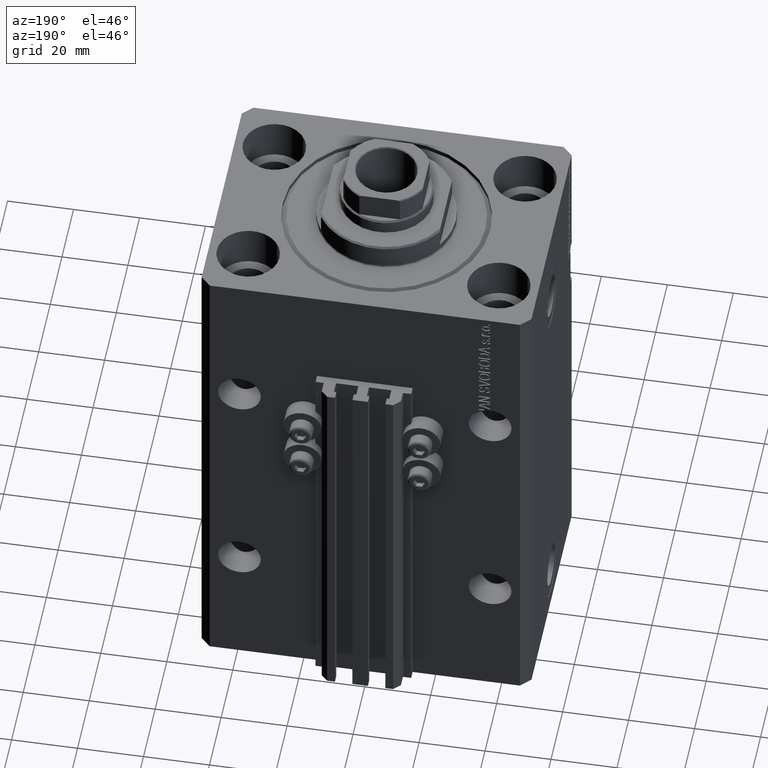
[diagram: clean part render]
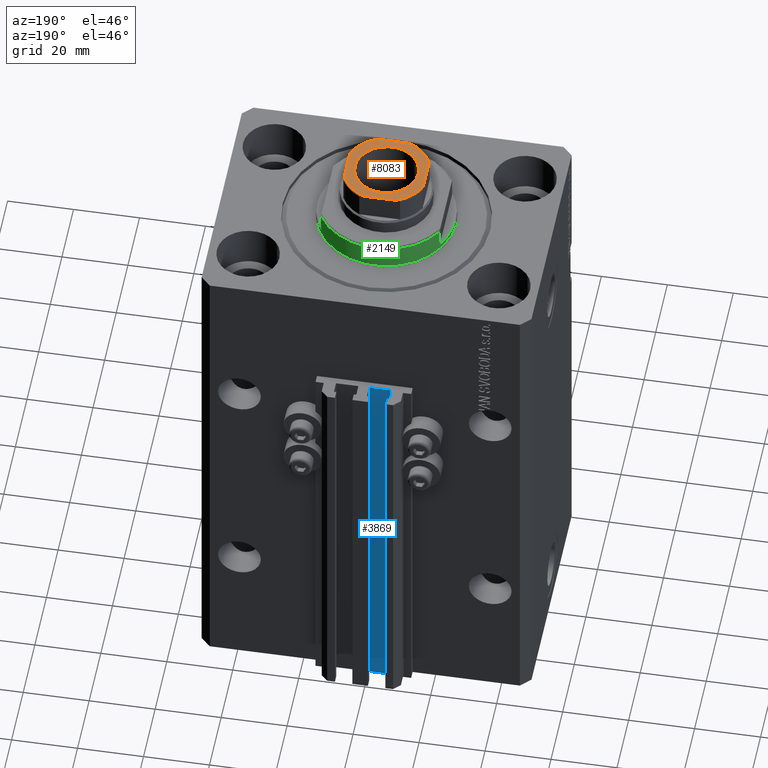
[diagram: same view with three faces highlighted in distinct colors, each labeled with its STEP entity id]
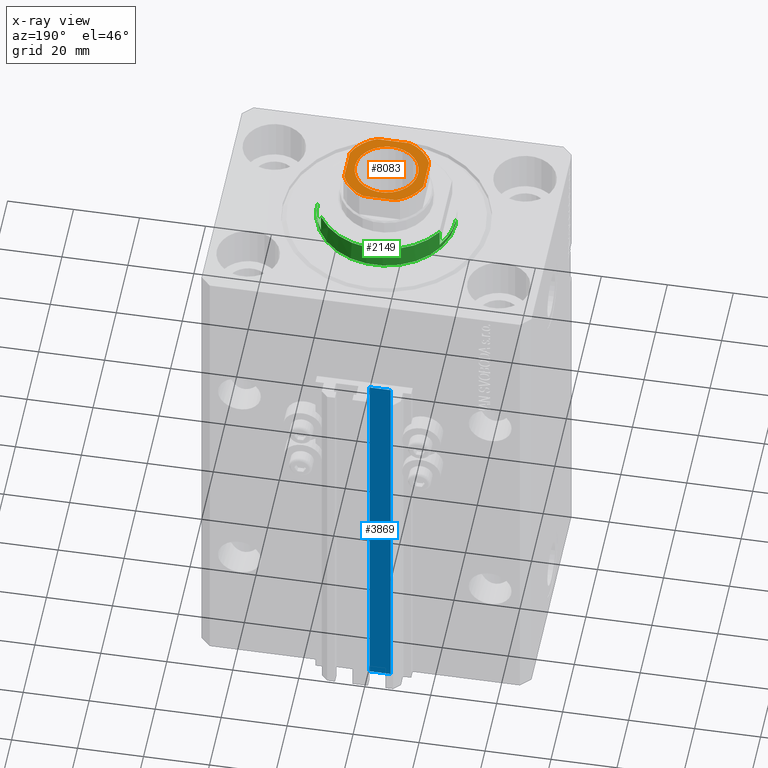
[diagram: x-ray of the same camera — body ghosted, the three highlighted faces saturated]
A machine part, auxiliary view with three faces highlighted in distinct colors.
The next image is the same camera in x-ray (body ghosted, the three faces saturated) — at least one of them is partly hidden behind the body in this view.
Their STEP definitions:

[orange] entity #8083 — the highlighted planar face has unit normal (0, 0, 1).
#501 = DIRECTION ( 'NONE',  ( -1.445602896647339163E-16, 1.000000000000000000, -0.000000000000000000 ) ) ;
#2084 = ORIENTED_EDGE ( 'NONE', *, *, #6700, .T. ) ;
#2509 = DIRECTION ( 'NONE',  ( -0.000000000000000000, 0.000000000000000000, 1.000000000000000000 ) ) ;
#3273 = AXIS2_PLACEMENT_3D ( 'NONE', #17243, #33081, #36257 ) ;
#3310 = CARTESIAN_POINT ( 'NONE',  ( 0.000000000000000000, 0.000000000000000000, 163.1000000000000227 ) ) ;
#4049 = CARTESIAN_POINT ( 'NONE',  ( 5.000000000000002665, 12.00000000000000000, 163.1000000000000227 ) ) ;
#4467 = VERTEX_POINT ( 'NONE', #23609 ) ;
#4677 = DIRECTION ( 'NONE',  ( -0.000000000000000000, 0.000000000000000000, 1.000000000000000000 ) ) ;
#5738 = VERTEX_POINT ( 'NONE', #42980 ) ;
#6082 = VECTOR ( 'NONE', #41939, 1000.000000000000000 ) ;
#6700 = EDGE_CURVE ( 'NONE', #19696, #6999, #23826, .T. ) ;
#6999 = VERTEX_POINT ( 'NONE', #35691 ) ;
#7213 = VERTEX_POINT ( 'NONE', #26890 ) ;
#7603 = DIRECTION ( 'NONE',  ( -1.000000000000000000, -7.228014483236695816E-17, -0.000000000000000000 ) ) ;
#7735 = DIRECTION ( 'NONE',  ( 1.000000000000000000, 0.000000000000000000, 0.000000000000000000 ) ) ;
#8056 = LINE ( 'NONE', #15365, #6082 ) ;
#8083 = ADVANCED_FACE ( 'NONE', ( #39298, #24196 ), #31769, .T. ) ;
#9867 = EDGE_CURVE ( 'NONE', #44081, #40780, #41256, .T. ) ;
#10266 = EDGE_LOOP ( 'NONE', ( #2084, #25209, #15390, #35136, #12249, #19325, #26191, #44933 ) ) ;
#10425 = CARTESIAN_POINT ( 'NONE',  ( -11.99999999999999822, 5.000000000000000888, 163.1000000000000227 ) ) ;
#11263 = CARTESIAN_POINT ( 'NONE',  ( -11.99999999999999822, 11.99999999999999822, 163.1000000000000227 ) ) ;
#11318 = DIRECTION ( 'NONE',  ( 1.000000000000000000, 0.000000000000000000, 0.000000000000000000 ) ) ;
#11445 = CARTESIAN_POINT ( 'NONE',  ( 12.00000000000000000, 12.00000000000000000, 163.1000000000000227 ) ) ;
#12249 = ORIENTED_EDGE ( 'NONE', *, *, #16555, .T. ) ;
#12629 = CARTESIAN_POINT ( 'NONE',  ( 12.00000000000000178, -4.999999999999990230, 163.1000000000000227 ) ) ;
#13100 = DIRECTION ( 'NONE',  ( 7.228014483236695816E-17, -1.000000000000000000, 0.000000000000000000 ) ) ;
#13368 = EDGE_CURVE ( 'NONE', #4467, #5738, #18798, .T. ) ;
#13576 = ORIENTED_EDGE ( 'NONE', *, *, #39868, .T. ) ;
#14180 = DIRECTION ( 'NONE',  ( 1.000000000000000000, 0.000000000000000000, 0.000000000000000000 ) ) ;
#14876 = AXIS2_PLACEMENT_3D ( 'NONE', #16595, #4677, #19531 ) ;
#15365 = CARTESIAN_POINT ( 'NONE',  ( -11.99999999999999645, -12.00000000000000178, 163.1000000000000227 ) ) ;
#15390 = ORIENTED_EDGE ( 'NONE', *, *, #46297, .T. ) ;
#15464 = DIRECTION ( 'NONE',  ( -0.000000000000000000, 0.000000000000000000, 1.000000000000000000 ) ) ;
#15605 = EDGE_CURVE ( 'NONE', #42229, #32956, #18765, .T. ) ;
#16555 = EDGE_CURVE ( 'NONE', #32956, #44081, #22646, .T. ) ;
#16595 = CARTESIAN_POINT ( 'NONE',  ( 0.000000000000000000, 0.000000000000000000, 163.1000000000000227 ) ) ;
#16691 = AXIS2_PLACEMENT_3D ( 'NONE', #3310, #15464, #48139 ) ;
#17243 = CARTESIAN_POINT ( 'NONE',  ( 0.000000000000000000, 0.000000000000000000, 163.1000000000000227 ) ) ;
#17582 = CARTESIAN_POINT ( 'NONE',  ( 0.000000000000000000, 0.000000000000000000, 163.1000000000000227 ) ) ;
#18765 = CIRCLE ( 'NONE', #14876, 13.00000000000000000 ) ;
#18798 = CIRCLE ( 'NONE', #3273, 9.550000000000030909 ) ;
#18954 = VERTEX_POINT ( 'NONE', #21031 ) ;
#19325 = ORIENTED_EDGE ( 'NONE', *, *, #9867, .T. ) ;
#19531 = DIRECTION ( 'NONE',  ( 1.000000000000000000, 0.000000000000000000, 0.000000000000000000 ) ) ;
#19678 = DIRECTION ( 'NONE',  ( 0.000000000000000000, -0.000000000000000000, -1.000000000000000000 ) ) ;
#19696 = VERTEX_POINT ( 'NONE', #10425 ) ;
#20141 = DIRECTION ( 'NONE',  ( -0.000000000000000000, 0.000000000000000000, 1.000000000000000000 ) ) ;
#20608 = CIRCLE ( 'NONE', #42417, 9.550000000000030909 ) ;
#21031 = CARTESIAN_POINT ( 'NONE',  ( -5.000000000000001776, 11.99999999999999822, 163.1000000000000227 ) ) ;
#21348 = CIRCLE ( 'NONE', #16691, 13.00000000000000000 ) ;
#21469 = EDGE_CURVE ( 'NONE', #40780, #18954, #29805, .T. ) ;
#22646 = LINE ( 'NONE', #11445, #42924 ) ;
#23609 = CARTESIAN_POINT ( 'NONE',  ( -9.550000000000030909, 1.169537693185726108E-15, 163.1000000000000227 ) ) ;
#23826 = LINE ( 'NONE', #38700, #24011 ) ;
#24011 = VECTOR ( 'NONE', #13100, 1000.000000000000000 ) ;
#24143 = EDGE_CURVE ( 'NONE', #6999, #7213, #24651, .T. ) ;
#24196 = FACE_OUTER_BOUND ( 'NONE', #10266, .T. ) ;
#24651 = CIRCLE ( 'NONE', #28857, 13.00000000000000000 ) ;
#25209 = ORIENTED_EDGE ( 'NONE', *, *, #24143, .T. ) ;
#26191 = ORIENTED_EDGE ( 'NONE', *, *, #21469, .T. ) ;
#26274 = ORIENTED_EDGE ( 'NONE', *, *, #13368, .T. ) ;
#26890 = CARTESIAN_POINT ( 'NONE',  ( -4.999999999999992895, -12.00000000000000178, 163.1000000000000227 ) ) ;
#27471 = CARTESIAN_POINT ( 'NONE',  ( 0.000000000000000000, 0.000000000000000000, 163.1000000000000227 ) ) ;
#28857 = AXIS2_PLACEMENT_3D ( 'NONE', #33496, #32786, #11318 ) ;
#29805 = LINE ( 'NONE', #11263, #47752 ) ;
#31769 = PLANE ( 'NONE',  #41194 ) ;
#32492 = EDGE_LOOP ( 'NONE', ( #13576, #26274 ) ) ;
#32786 = DIRECTION ( 'NONE',  ( -0.000000000000000000, 0.000000000000000000, 1.000000000000000000 ) ) ;
#32956 = VERTEX_POINT ( 'NONE', #12629 ) ;
#33081 = DIRECTION ( 'NONE',  ( 0.000000000000000000, -0.000000000000000000, -1.000000000000000000 ) ) ;
#33496 = CARTESIAN_POINT ( 'NONE',  ( 0.000000000000000000, 0.000000000000000000, 163.1000000000000227 ) ) ;
#35136 = ORIENTED_EDGE ( 'NONE', *, *, #15605, .T. ) ;
#35691 = CARTESIAN_POINT ( 'NONE',  ( -11.99999999999999822, -5.000000000000001776, 163.1000000000000227 ) ) ;
#36257 = DIRECTION ( 'NONE',  ( 1.000000000000000000, 0.000000000000000000, 0.000000000000000000 ) ) ;
#38126 = AXIS2_PLACEMENT_3D ( 'NONE', #27471, #20141, #42333 ) ;
#38700 = CARTESIAN_POINT ( 'NONE',  ( -11.99999999999999822, 11.99999999999999822, 163.1000000000000227 ) ) ;
#38701 = EDGE_CURVE ( 'NONE', #18954, #19696, #21348, .T. ) ;
#39298 = FACE_BOUND ( 'NONE', #32492, .T. ) ;
#39868 = EDGE_CURVE ( 'NONE', #5738, #4467, #20608, .T. ) ;
#40479 = CARTESIAN_POINT ( 'NONE',  ( 12.00000000000000178, 4.999999999999994671, 163.1000000000000227 ) ) ;
#40780 = VERTEX_POINT ( 'NONE', #4049 ) ;
#41134 = CARTESIAN_POINT ( 'NONE',  ( 0.000000000000000000, 0.000000000000000000, 163.1000000000000227 ) ) ;
#41194 = AXIS2_PLACEMENT_3D ( 'NONE', #17582, #2509, #14180 ) ;
#41256 = CIRCLE ( 'NONE', #38126, 13.00000000000000000 ) ;
#41939 = DIRECTION ( 'NONE',  ( 1.000000000000000000, 7.228014483236695816E-17, 0.000000000000000000 ) ) ;
#42229 = VERTEX_POINT ( 'NONE', #47812 ) ;
#42333 = DIRECTION ( 'NONE',  ( 1.000000000000000000, 0.000000000000000000, 0.000000000000000000 ) ) ;
#42417 = AXIS2_PLACEMENT_3D ( 'NONE', #41134, #19678, #7735 ) ;
#42924 = VECTOR ( 'NONE', #501, 1000.000000000000000 ) ;
#42980 = CARTESIAN_POINT ( 'NONE',  ( 9.550000000000030909, 0.000000000000000000, 163.1000000000000227 ) ) ;
#44081 = VERTEX_POINT ( 'NONE', #40479 ) ;
#44933 = ORIENTED_EDGE ( 'NONE', *, *, #38701, .T. ) ;
#46297 = EDGE_CURVE ( 'NONE', #7213, #42229, #8056, .T. ) ;
#47752 = VECTOR ( 'NONE', #7603, 1000.000000000000000 ) ;
#47812 = CARTESIAN_POINT ( 'NONE',  ( 4.999999999999993783, -12.00000000000000178, 163.1000000000000227 ) ) ;
#48139 = DIRECTION ( 'NONE',  ( 1.000000000000000000, 0.000000000000000000, 0.000000000000000000 ) ) ;

[blue] entity #3869 — the highlighted planar face has unit normal (0, 1, 0).
#2935 = AXIS2_PLACEMENT_3D ( 'NONE', #25690, #4244, #33969 ) ;
#3865 = EDGE_CURVE ( 'NONE', #33690, #47445, #19092, .T. ) ;
#3869 = ADVANCED_FACE ( 'NONE', ( #15208 ), #41281, .T. ) ;
#3999 = DIRECTION ( 'NONE',  ( -1.000000000000000000, 0.000000000000000000, 0.000000000000000000 ) ) ;
#4061 = VECTOR ( 'NONE', #19044, 1000.000000000000000 ) ;
#4191 = CARTESIAN_POINT ( 'NONE',  ( -1.800000000000000933, 39.50000000000000000, -33.00000000000000000 ) ) ;
#4244 = DIRECTION ( 'NONE',  ( 0.000000000000000000, 1.000000000000000000, -0.000000000000000000 ) ) ;
#6673 = LINE ( 'NONE', #10556, #43834 ) ;
#7596 = LINE ( 'NONE', #4191, #4061 ) ;
#9594 = ORIENTED_EDGE ( 'NONE', *, *, #3865, .T. ) ;
#9644 = VERTEX_POINT ( 'NONE', #39911 ) ;
#9975 = CARTESIAN_POINT ( 'NONE',  ( -1.800000000000000933, 39.50000000000000000, -155.0000000000000000 ) ) ;
#10272 = CARTESIAN_POINT ( 'NONE',  ( -8.199999999999997513, 39.50000000000000000, -155.0000000000000000 ) ) ;
#10556 = CARTESIAN_POINT ( 'NONE',  ( -1.800000000000000933, 39.50000000000000000, -155.0000000000000000 ) ) ;
#11186 = VECTOR ( 'NONE', #14170, 1000.000000000000000 ) ;
#13632 = VERTEX_POINT ( 'NONE', #43701 ) ;
#14170 = DIRECTION ( 'NONE',  ( 0.000000000000000000, 0.000000000000000000, 1.000000000000000000 ) ) ;
#15208 = FACE_OUTER_BOUND ( 'NONE', #33901, .T. ) ;
#18352 = ORIENTED_EDGE ( 'NONE', *, *, #29553, .F. ) ;
#19044 = DIRECTION ( 'NONE',  ( -1.000000000000000000, 0.000000000000000000, 0.000000000000000000 ) ) ;
#19092 = LINE ( 'NONE', #30326, #23942 ) ;
#23942 = VECTOR ( 'NONE', #3999, 1000.000000000000000 ) ;
#25690 = CARTESIAN_POINT ( 'NONE',  ( -1.800000000000000933, 39.50000000000000000, -155.0000000000000000 ) ) ;
#28332 = LINE ( 'NONE', #10272, #11186 ) ;
#29476 = CARTESIAN_POINT ( 'NONE',  ( -8.199999999999997513, 39.50000000000000000, -155.0000000000000000 ) ) ;
#29553 = EDGE_CURVE ( 'NONE', #13632, #9644, #7596, .T. ) ;
#30326 = CARTESIAN_POINT ( 'NONE',  ( -1.800000000000000933, 39.50000000000000000, -155.0000000000000000 ) ) ;
#32409 = EDGE_CURVE ( 'NONE', #33690, #13632, #6673, .T. ) ;
#33690 = VERTEX_POINT ( 'NONE', #9975 ) ;
#33901 = EDGE_LOOP ( 'NONE', ( #18352, #36234, #9594, #45422 ) ) ;
#33969 = DIRECTION ( 'NONE',  ( 0.000000000000000000, 0.000000000000000000, 1.000000000000000000 ) ) ;
#36234 = ORIENTED_EDGE ( 'NONE', *, *, #32409, .F. ) ;
#36676 = EDGE_CURVE ( 'NONE', #47445, #9644, #28332, .T. ) ;
#39911 = CARTESIAN_POINT ( 'NONE',  ( -8.199999999999997513, 39.50000000000000000, -33.00000000000000000 ) ) ;
#41281 = PLANE ( 'NONE',  #2935 ) ;
#43701 = CARTESIAN_POINT ( 'NONE',  ( -1.800000000000000933, 39.50000000000000000, -33.00000000000000000 ) ) ;
#43834 = VECTOR ( 'NONE', #43960, 1000.000000000000000 ) ;
#43960 = DIRECTION ( 'NONE',  ( 0.000000000000000000, 0.000000000000000000, 1.000000000000000000 ) ) ;
#45422 = ORIENTED_EDGE ( 'NONE', *, *, #36676, .T. ) ;
#47445 = VERTEX_POINT ( 'NONE', #29476 ) ;

[green] entity #2149 — the highlighted cylindrical surface (partial cylindrical patch) has radius 21 mm, axis along (0, 0, -1).
#528 = FACE_OUTER_BOUND ( 'NONE', #44082, .T. ) ;
#1067 = LINE ( 'NONE', #34685, #35151 ) ;
#2149 = ADVANCED_FACE ( 'NONE', ( #528 ), #23166, .T. ) ;
#3300 = CIRCLE ( 'NONE', #39895, 21.00000000000000000 ) ;
#3490 = CARTESIAN_POINT ( 'NONE',  ( 18.00000000000000000, 10.81665382639197048, -2.000000000000000000 ) ) ;
#3619 = EDGE_CURVE ( 'NONE', #12489, #7382, #47221, .T. ) ;
#3658 = AXIS2_PLACEMENT_3D ( 'NONE', #11716, #15367, #44625 ) ;
#5800 = DIRECTION ( 'NONE',  ( 1.000000000000000000, 0.000000000000000000, 0.000000000000000000 ) ) ;
#6336 = AXIS2_PLACEMENT_3D ( 'NONE', #27804, #8786, #9263 ) ;
#7136 = LINE ( 'NONE', #29817, #40829 ) ;
#7382 = VERTEX_POINT ( 'NONE', #36584 ) ;
#7946 = DIRECTION ( 'NONE',  ( -0.000000000000000000, -0.000000000000000000, 1.000000000000000000 ) ) ;
#8786 = DIRECTION ( 'NONE',  ( 0.000000000000000000, 0.000000000000000000, 1.000000000000000000 ) ) ;
#9263 = DIRECTION ( 'NONE',  ( -1.000000000000000000, 0.000000000000000000, 0.000000000000000000 ) ) ;
#9291 = CARTESIAN_POINT ( 'NONE',  ( 0.000000000000000000, 0.000000000000000000, -2.000000000000000000 ) ) ;
#10658 = EDGE_CURVE ( 'NONE', #43686, #26658, #27844, .T. ) ;
#10898 = CARTESIAN_POINT ( 'NONE',  ( -21.00000000000000000, 2.571758278209441661E-15, -2.000000000000000000 ) ) ;
#11433 = ORIENTED_EDGE ( 'NONE', *, *, #29665, .F. ) ;
#11716 = CARTESIAN_POINT ( 'NONE',  ( 0.000000000000000000, 0.000000000000000000, -8.000000000000000000 ) ) ;
#12202 = CARTESIAN_POINT ( 'NONE',  ( 0.000000000000000000, 0.000000000000000000, -0.5000000000000004441 ) ) ;
#12489 = VERTEX_POINT ( 'NONE', #16711 ) ;
#12533 = ORIENTED_EDGE ( 'NONE', *, *, #3619, .T. ) ;
#13421 = AXIS2_PLACEMENT_3D ( 'NONE', #9291, #31497, #23918 ) ;
#13676 = DIRECTION ( 'NONE',  ( -0.000000000000000000, -0.000000000000000000, 1.000000000000000000 ) ) ;
#14690 = DIRECTION ( 'NONE',  ( -0.000000000000000000, -0.000000000000000000, 1.000000000000000000 ) ) ;
#15022 = CARTESIAN_POINT ( 'NONE',  ( -18.00000000000000000, 10.81665382639197048, -8.000000000000000000 ) ) ;
#15367 = DIRECTION ( 'NONE',  ( -0.000000000000000000, -0.000000000000000000, 1.000000000000000000 ) ) ;
#16115 = CARTESIAN_POINT ( 'NONE',  ( 0.000000000000000000, 0.000000000000000000, -2.000000000000000000 ) ) ;
#16356 = DIRECTION ( 'NONE',  ( 0.000000000000000000, 0.000000000000000000, -1.000000000000000000 ) ) ;
#16711 = CARTESIAN_POINT ( 'NONE',  ( -18.00000000000000000, 10.81665382639197048, -7.500000000000016875 ) ) ;
#16741 = VERTEX_POINT ( 'NONE', #33089 ) ;
#17167 = CARTESIAN_POINT ( 'NONE',  ( 21.00000000000000000, 0.000000000000000000, -2.000000000000000000 ) ) ;
#18059 = CIRCLE ( 'NONE', #13421, 21.00000000000000000 ) ;
#18443 = EDGE_CURVE ( 'NONE', #35202, #7382, #3300, .T. ) ;
#18698 = VECTOR ( 'NONE', #13676, 1000.000000000000000 ) ;
#19074 = DIRECTION ( 'NONE',  ( -0.000000000000000000, -0.000000000000000000, 1.000000000000000000 ) ) ;
#19803 = CARTESIAN_POINT ( 'NONE',  ( 21.00000000000000000, 0.000000000000000000, -0.5000000000000004441 ) ) ;
#23166 = CYLINDRICAL_SURFACE ( 'NONE', #3658, 21.00000000000000000 ) ;
#23918 = DIRECTION ( 'NONE',  ( -1.000000000000000000, 0.000000000000000000, 0.000000000000000000 ) ) ;
#25294 = VERTEX_POINT ( 'NONE', #3490 ) ;
#26059 = ORIENTED_EDGE ( 'NONE', *, *, #18443, .F. ) ;
#26106 = AXIS2_PLACEMENT_3D ( 'NONE', #12202, #38287, #5800 ) ;
#26658 = VERTEX_POINT ( 'NONE', #19803 ) ;
#27363 = CIRCLE ( 'NONE', #6336, 21.00000000000000000 ) ;
#27676 = EDGE_CURVE ( 'NONE', #30249, #25294, #1067, .T. ) ;
#27804 = CARTESIAN_POINT ( 'NONE',  ( 0.000000000000000000, 0.000000000000000000, -7.500000000000016875 ) ) ;
#27844 = LINE ( 'NONE', #42697, #18698 ) ;
#28063 = EDGE_CURVE ( 'NONE', #30249, #12489, #27363, .T. ) ;
#29665 = EDGE_CURVE ( 'NONE', #25294, #43686, #18059, .T. ) ;
#29817 = CARTESIAN_POINT ( 'NONE',  ( -21.00000000000000000, 2.571758278209441661E-15, -8.000000000000000000 ) ) ;
#30249 = VERTEX_POINT ( 'NONE', #40504 ) ;
#31006 = DIRECTION ( 'NONE',  ( -1.000000000000000000, 0.000000000000000000, 0.000000000000000000 ) ) ;
#31497 = DIRECTION ( 'NONE',  ( 0.000000000000000000, 0.000000000000000000, -1.000000000000000000 ) ) ;
#32221 = ORIENTED_EDGE ( 'NONE', *, *, #40473, .T. ) ;
#32854 = ORIENTED_EDGE ( 'NONE', *, *, #27676, .F. ) ;
#33089 = CARTESIAN_POINT ( 'NONE',  ( -21.00000000000000000, 2.571758278209441661E-15, -0.5000000000000004441 ) ) ;
#33291 = ORIENTED_EDGE ( 'NONE', *, *, #35763, .T. ) ;
#34685 = CARTESIAN_POINT ( 'NONE',  ( 18.00000000000000000, 10.81665382639197048, -8.000000000000000000 ) ) ;
#34837 = VECTOR ( 'NONE', #7946, 1000.000000000000000 ) ;
#35151 = VECTOR ( 'NONE', #19074, 1000.000000000000000 ) ;
#35202 = VERTEX_POINT ( 'NONE', #10898 ) ;
#35763 = EDGE_CURVE ( 'NONE', #35202, #16741, #7136, .T. ) ;
#36241 = CIRCLE ( 'NONE', #26106, 21.00000000000000000 ) ;
#36584 = CARTESIAN_POINT ( 'NONE',  ( -18.00000000000000000, 10.81665382639197048, -2.000000000000000000 ) ) ;
#37737 = ORIENTED_EDGE ( 'NONE', *, *, #10658, .F. ) ;
#38287 = DIRECTION ( 'NONE',  ( -0.000000000000000000, -0.000000000000000000, -1.000000000000000000 ) ) ;
#39895 = AXIS2_PLACEMENT_3D ( 'NONE', #16115, #16356, #31006 ) ;
#40473 = EDGE_CURVE ( 'NONE', #16741, #26658, #36241, .T. ) ;
#40504 = CARTESIAN_POINT ( 'NONE',  ( 18.00000000000000000, 10.81665382639197048, -7.500000000000016875 ) ) ;
#40829 = VECTOR ( 'NONE', #14690, 1000.000000000000000 ) ;
#42697 = CARTESIAN_POINT ( 'NONE',  ( 21.00000000000000000, 0.000000000000000000, -8.000000000000000000 ) ) ;
#43686 = VERTEX_POINT ( 'NONE', #17167 ) ;
#44082 = EDGE_LOOP ( 'NONE', ( #26059, #33291, #32221, #37737, #11433, #32854, #48077, #12533 ) ) ;
#44625 = DIRECTION ( 'NONE',  ( 1.000000000000000000, 0.000000000000000000, 0.000000000000000000 ) ) ;
#47221 = LINE ( 'NONE', #15022, #34837 ) ;
#48077 = ORIENTED_EDGE ( 'NONE', *, *, #28063, .T. ) ;